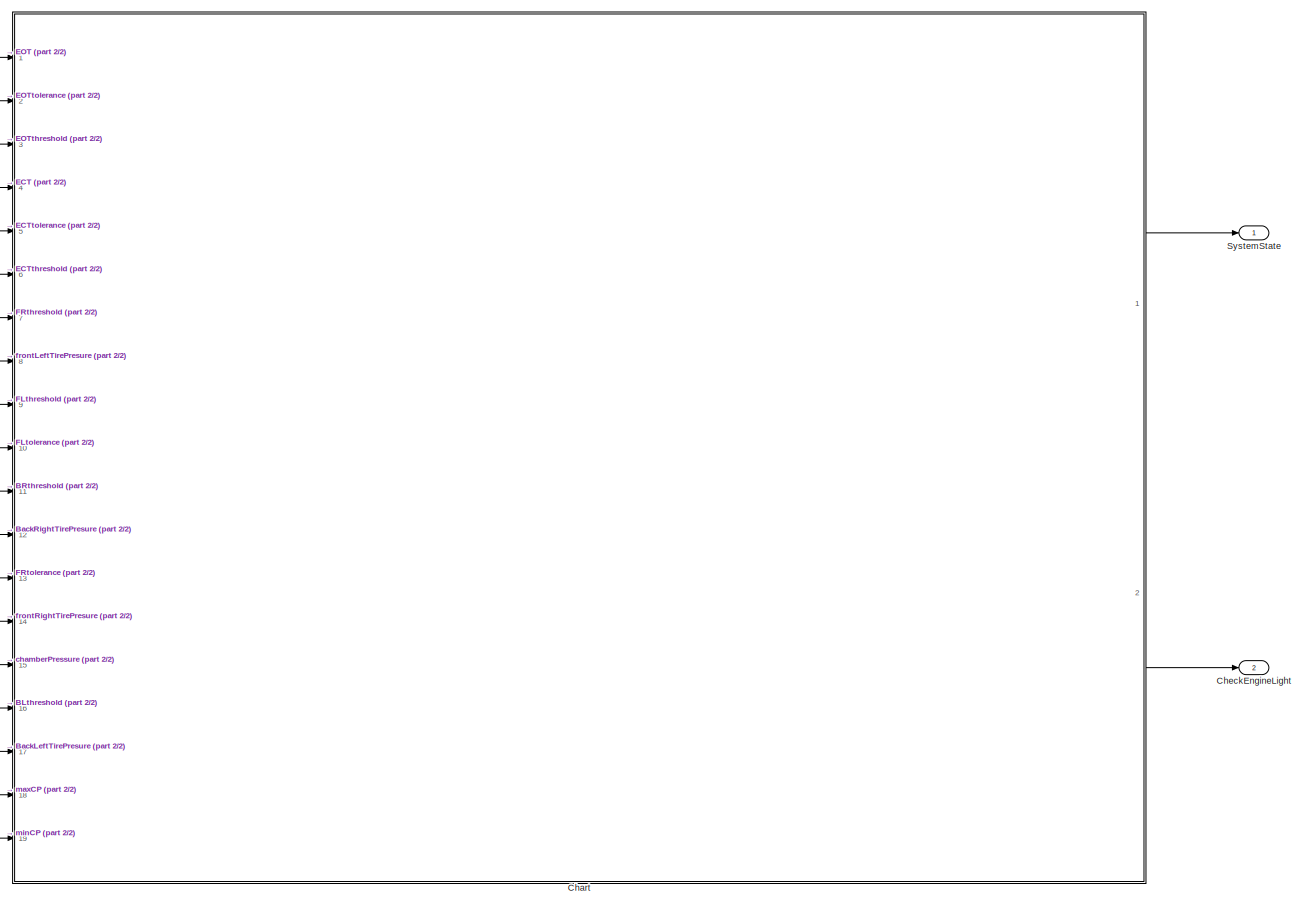
[diagram: root canvas - part 1/2, most of the canvas]
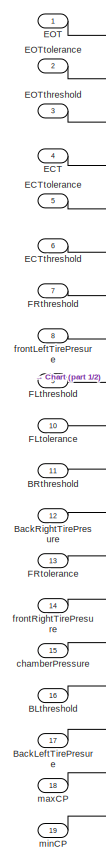
[diagram: root canvas - part 2/2, left side, full height]
MODEL slx_bfdccdaed310
KIND model
CONFIG AbsTol = auto
CONFIG EnableMultiTasking = off
CONFIG FixedStep = auto
CONFIG MaxStep = auto
CONFIG MinStep = auto
CONFIG RelTol = 1e-3
CONFIG SampleTimeConstraint = Unconstrained
CONFIG Solver = FixedStepAuto
CONFIG SolverName = FixedStepAuto
CONFIG StartTime = 0.0
CONFIG StopTime = 100
BLOCK [Inport] BLthreshold
  IconDisplay = Port number
  Port = 16
BLOCK [Inport] BRthreshold
  IconDisplay = Port number
  Port = 11
BLOCK [Inport] BackLeftTirePresure
  IconDisplay = Port number
  Port = 17
BLOCK [Inport] BackRightTirePresure
  IconDisplay = Port number
  Port = 12
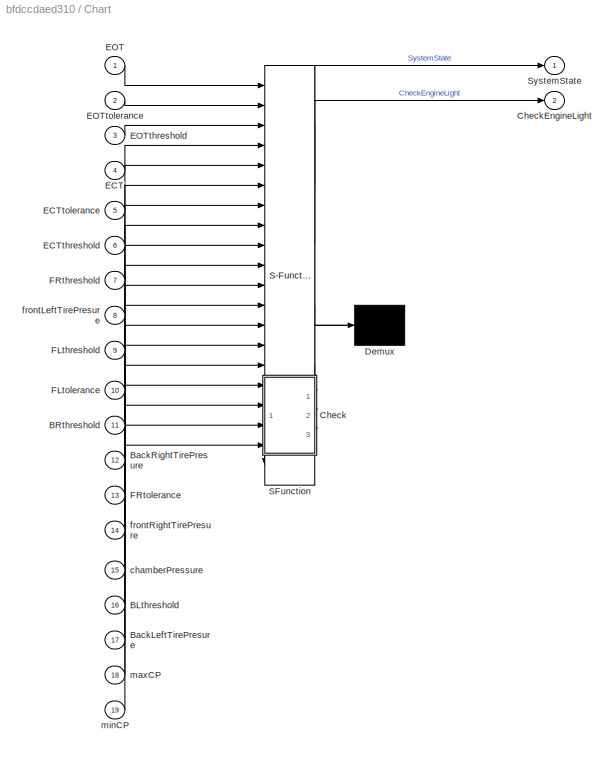
BLOCK [SubSystem] Chart
  BlockKeywords = __PRM__SERIALIZED__DATA__:Stateflow Chart,Stateflow Diagram
  ErrorFcn = Stateflow.Translate.translate
  PermitHierarchicalResolution = ExplicitOnly
  Ports = [19, 2]
  RequestExecContextInheritance = off
  SFBlockType = Chart
  TreatAsAtomicUnit = on
BLOCK [Demux] Chart/ Demux 
  Outputs = 1
  Ports = [1, 1]
BLOCK [S-Function] Chart/ SFunction 
  EnableBusSupport = on
  FunctionName = sf_sfun
  PortCounts = [20 6]
  Ports = [20, 6]
  SFcnIsStateOwnerBlock = off
  SFunctionDeploymentMode = off
  Tag = Stateflow S-Function req13 3
BLOCK [Inport] Chart/BLthreshold
  IconDisplay = Port number
  Port = 16
BLOCK [Inport] Chart/BRthreshold
  IconDisplay = Port number
  Port = 11
BLOCK [Inport] Chart/BackLeftTirePresure
  IconDisplay = Port number
  Port = 17
BLOCK [Inport] Chart/BackRightTirePresure
  IconDisplay = Port number
  Port = 12
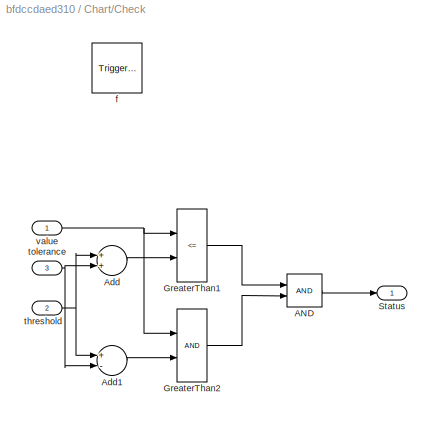
BLOCK [SubSystem] Chart/Check
  Ports = [3, 1, 0, 1]
  PreDeleteFcn = Stateflow.SLINSF.SimulinkMan.removePreDeleteFcn
  RequestExecContextInheritance = off
  UndoDeleteFcn = Stateflow.SLINSF.SimulinkMan.restorePreDeleteFcn
BLOCK [Logic] Chart/Check/AND
  AllPortsSameDT = off
  OutDataTypeStr = boolean
  Ports = [2, 1]
BLOCK [Sum] Chart/Check/Add
  InputSameDT = off
  OutDataTypeStr = Inherit: Inherit via internal rule
  Ports = [2, 1]
  SaturateOnIntegerOverflow = off
BLOCK [Sum] Chart/Check/Add1
  InputSameDT = off
  Inputs = +-
  OutDataTypeStr = Inherit: Inherit via internal rule
  Ports = [2, 1]
  SaturateOnIntegerOverflow = off
BLOCK [RelationalOperator] Chart/Check/GreaterThan1
  InputSameDT = off
  Operator = <=
  OutDataTypeStr = boolean
  Ports = [2, 1]
  RndMeth = Simplest
BLOCK [RelationalOperator] Chart/Check/GreaterThan2
  InputSameDT = off
  OutDataTypeStr = boolean
  Ports = [2, 1]
  RndMeth = Simplest
BLOCK [Outport] Chart/Check/Status
  IconDisplay = Port number
BLOCK [TriggerPort] Chart/Check/f
  CopyFcn = Stateflow.SLINSF.SimulinkMan.removeBlockPreDeleteFcn
  Ports = []
  PreDeleteFcn = Stateflow.SLINSF.SimulinkMan.unsafePredeleteFcn
  StatesWhenEnabling = held
  TriggerType = function-call
  VariantControl = (inherit)
BLOCK [Inport] Chart/Check/threshold
  IconDisplay = Port number
  OutDataTypeStr = double
  Port = 2
  PortDimensions = 1
  SignalType = real
  VarSizeSig = No
BLOCK [Inport] Chart/Check/tolerance
  IconDisplay = Port number
  OutDataTypeStr = double
  Port = 3
  PortDimensions = 1
  SignalType = real
  VarSizeSig = No
BLOCK [Inport] Chart/Check/value
  IconDisplay = Port number
  OutDataTypeStr = double
  PortDimensions = 1
  SignalType = real
  VarSizeSig = No
BLOCK [Outport] Chart/CheckEngineLight
  IconDisplay = Port number
  Port = 2
BLOCK [Inport] Chart/ECT
  IconDisplay = Port number
  Port = 4
BLOCK [Inport] Chart/ECTthreshold
  IconDisplay = Port number
  Port = 6
BLOCK [Inport] Chart/ECTtolerance
  IconDisplay = Port number
  Port = 5
BLOCK [Inport] Chart/EOT
  IconDisplay = Port number
BLOCK [Inport] Chart/EOTthreshold
  IconDisplay = Port number
  Port = 3
BLOCK [Inport] Chart/EOTtolerance
  IconDisplay = Port number
  Port = 2
BLOCK [Inport] Chart/FLthreshold
  IconDisplay = Port number
  Port = 9
BLOCK [Inport] Chart/FLtolerance
  IconDisplay = Port number
  Port = 10
BLOCK [Inport] Chart/FRthreshold
  IconDisplay = Port number
  Port = 7
BLOCK [Inport] Chart/FRtolerance
  IconDisplay = Port number
  Port = 13
BLOCK [Outport] Chart/SystemState
  IconDisplay = Port number
BLOCK [Inport] Chart/chamberPressure
  IconDisplay = Port number
  Port = 15
BLOCK [Inport] Chart/frontLeftTirePresure
  IconDisplay = Port number
  Port = 8
BLOCK [Inport] Chart/frontRightTirePresure
  IconDisplay = Port number
  Port = 14
BLOCK [Inport] Chart/maxCP
  IconDisplay = Port number
  Port = 18
BLOCK [Inport] Chart/minCP
  IconDisplay = Port number
  Port = 19
BLOCK [Outport] CheckEngineLight
  IconDisplay = Port number
  Port = 2
BLOCK [Inport] ECT
  IconDisplay = Port number
  Port = 4
BLOCK [Inport] ECTthreshold
  IconDisplay = Port number
  Port = 6
BLOCK [Inport] ECTtolerance
  IconDisplay = Port number
  Port = 5
BLOCK [Inport] EOT
  IconDisplay = Port number
BLOCK [Inport] EOTthreshold
  IconDisplay = Port number
  Port = 3
BLOCK [Inport] EOTtolerance
  IconDisplay = Port number
  Port = 2
BLOCK [Inport] FLthreshold
  IconDisplay = Port number
  Port = 9
BLOCK [Inport] FLtolerance
  IconDisplay = Port number
  Port = 10
BLOCK [Inport] FRthreshold
  IconDisplay = Port number
  Port = 7
BLOCK [Inport] FRtolerance
  IconDisplay = Port number
  Port = 13
BLOCK [Outport] SystemState
  IconDisplay = Port number
BLOCK [Inport] chamberPressure
  IconDisplay = Port number
  Port = 15
BLOCK [Inport] frontLeftTirePresure
  IconDisplay = Port number
  Port = 8
BLOCK [Inport] frontRightTirePresure
  IconDisplay = Port number
  Port = 14
BLOCK [Inport] maxCP
  IconDisplay = Port number
  Port = 18
BLOCK [Inport] minCP
  IconDisplay = Port number
  Port = 19
LINE BLthreshold:1 -> Chart:16
LINE BRthreshold:1 -> Chart:11
LINE BackLeftTirePresure:1 -> Chart:17
LINE BackRightTirePresure:1 -> Chart:12
LINE Chart:1 -> SystemState:1
LINE Chart:2 -> CheckEngineLight:1
LINE ECT:1 -> Chart:4
LINE ECTthreshold:1 -> Chart:6
LINE ECTtolerance:1 -> Chart:5
LINE EOT:1 -> Chart:1
LINE EOTthreshold:1 -> Chart:3
LINE EOTtolerance:1 -> Chart:2
LINE FLthreshold:1 -> Chart:9
LINE FLtolerance:1 -> Chart:10
LINE FRthreshold:1 -> Chart:7
LINE FRtolerance:1 -> Chart:13
LINE chamberPressure:1 -> Chart:15
LINE frontLeftTirePresure:1 -> Chart:8
LINE frontRightTirePresure:1 -> Chart:14
LINE maxCP:1 -> Chart:18
LINE minCP:1 -> Chart:19
CHART Chart states=6 transitions=5
  STATE_LABEL 'default'
  STATE_LABEL 'Status=Check(value,threshold,tolerance)'
  STATE_LABEL 'green\nCheckEngineLight=0;\nSystemState=1;'
  STATE_LABEL 'wait\nen:\ntime=0;\nexitState=false;\ndu:\ntime=time+1;\nexitState=(time > 10);'
  STATE_LABEL 'orange1\nCheckEngineLight=0;\nSystemState=2;'
  STATE_LABEL 'red\nCheckEngineLight=1;\nSystemState=3;'
